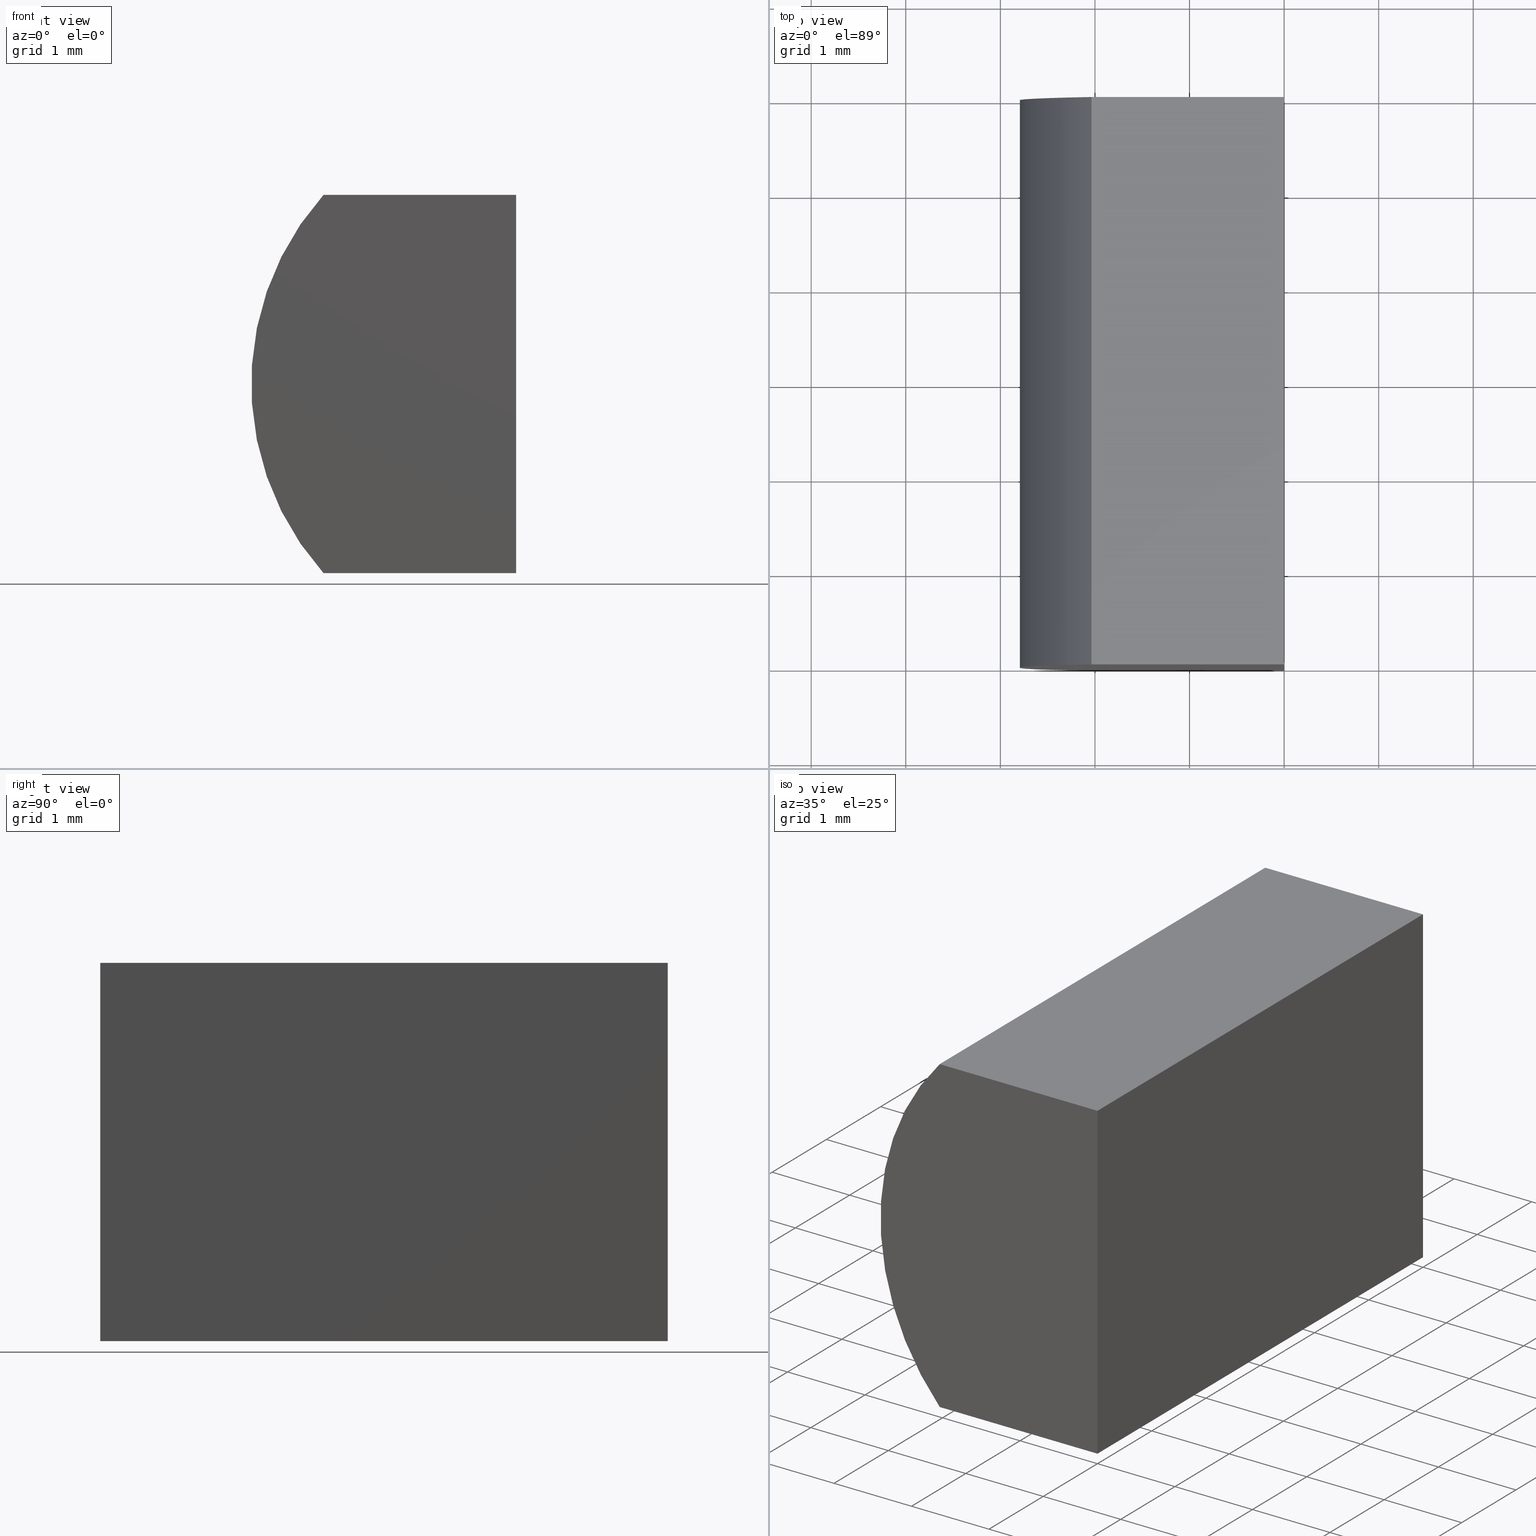
[diagram: canonical four-view strip — front | top / right | iso, engineering-drawing reading convention]
A machine part, canonical four-view strip (front | top / right | iso — engineering-drawing reading convention). The complete STEP part file that produces these views, byte-faithful:
ISO-10303-21;
HEADER;
FILE_DESCRIPTION (( 'STEP AP214' ),
    '1' );
FILE_NAME ('155002.STEP',
    '2019-06-14T05:14:45',
    ( 'user' ),
    ( '΢���й�' ),
    'SwSTEP 2.0',
    'SolidWorks 2016',
    '' );
FILE_SCHEMA (( 'AUTOMOTIVE_DESIGN' ));
ENDSEC;

DATA;
#1 = DIRECTION ( 'NONE',  ( -0.0000000000000000000, -1.000000000000000000, -0.0000000000000000000 ) ) ;
#2 = DIRECTION ( 'NONE',  ( 0.0000000000000000000, 1.000000000000000000, 0.0000000000000000000 ) ) ;
#3 = DIRECTION ( 'NONE',  ( 0.0000000000000000000, 1.000000000000000000, 0.0000000000000000000 ) ) ;
#4 = DIRECTION ( 'NONE',  ( -0.0000000000000000000, -0.0000000000000000000, -1.000000000000000000 ) ) ;
#5 = EDGE_CURVE ( 'NONE', #169, #12, #99, .T. ) ;
#6 = DIRECTION ( 'NONE',  ( 0.0000000000000000000, 0.0000000000000000000, -1.000000000000000000 ) ) ;
#7 = FILL_AREA_STYLE ('',( #93 ) ) ;
#8 = VECTOR ( 'NONE', #1, 1000.000000000000000 ) ;
#9 = CARTESIAN_POINT ( 'NONE',  ( 0.2000000000000005100, 6.000000000000000000, 2.000000000000000000 ) ) ;
#10 = DIRECTION ( 'NONE',  ( -0.0000000000000000000, -1.000000000000000000, -0.0000000000000000000 ) ) ;
#11 = CARTESIAN_POINT ( 'NONE',  ( 0.0000000000000000000, 0.0000000000000000000, 0.0000000000000000000 ) ) ;
#12 = VERTEX_POINT ( 'NONE', #79 ) ;
#13 = ADVANCED_FACE ( 'NONE', ( #80 ), #139, .F. ) ;
#14 = APPLICATION_PROTOCOL_DEFINITION ( 'draft international standard', 'automotive_design', 1998, #95 ) ;
#15 = CARTESIAN_POINT ( 'NONE',  ( -2.036067977499789600, 6.000000000000000000, 4.000000000000000000 ) ) ;
#16 = ORIENTED_EDGE ( 'NONE', *, *, #75, .F. ) ;
#17 =( GEOMETRIC_REPRESENTATION_CONTEXT ( 3 ) GLOBAL_UNCERTAINTY_ASSIGNED_CONTEXT ( ( #61 ) ) GLOBAL_UNIT_ASSIGNED_CONTEXT ( ( #90, #106, #118 ) ) REPRESENTATION_CONTEXT ( 'NONE', 'WORKASPACE' ) );
#18 = DIRECTION ( 'NONE',  ( 0.0000000000000000000, -0.0000000000000000000, 1.000000000000000000 ) ) ;
#19 = CARTESIAN_POINT ( 'NONE',  ( 0.0000000000000000000, 6.000000000000000000, 4.000000000000000000 ) ) ;
#20 = LINE ( 'NONE', #151, #8 ) ;
#21 = PRODUCT_RELATED_PRODUCT_CATEGORY ( 'part', '', ( #32 ) ) ;
#22 = LINE ( 'NONE', #202, #25 ) ;
#23 = UNCERTAINTY_MEASURE_WITH_UNIT (LENGTH_MEASURE( 1.000000000000000100E-005 ), #51, 'distance_accuracy_value', 'NONE');
#24 = VECTOR ( 'NONE', #4, 1000.000000000000000 ) ;
#25 = VECTOR ( 'NONE', #196, 1000.000000000000000 ) ;
#26 = AXIS2_PLACEMENT_3D ( 'NONE', #149, #2, #197 ) ;
#27 = EDGE_CURVE ( 'NONE', #133, #169, #115, .T. ) ;
#28 = DIRECTION ( 'NONE',  ( 1.000000000000000000, 0.0000000000000000000, 0.0000000000000000000 ) ) ;
#29 = ORIENTED_EDGE ( 'NONE', *, *, #157, .T. ) ;
#30 = EDGE_LOOP ( 'NONE', ( #114, #187, #16, #175 ) ) ;
#31 = ORIENTED_EDGE ( 'NONE', *, *, #27, .T. ) ;
#32 = PRODUCT ( '155002', '155002', '', ( #103 ) ) ;
#33 = DIRECTION ( 'NONE',  ( -1.000000000000000000, 0.0000000000000000000, 0.0000000000000000000 ) ) ;
#34 = VECTOR ( 'NONE', #81, 1000.000000000000000 ) ;
#35 = AXIS2_PLACEMENT_3D ( 'NONE', #172, #56, #62 ) ;
#36 = PLANE ( 'NONE',  #94 ) ;
#37 = PLANE ( 'NONE',  #35 ) ;
#38 = ORIENTED_EDGE ( 'NONE', *, *, #46, .T. ) ;
#39 = DIRECTION ( 'NONE',  ( -0.0000000000000000000, -0.0000000000000000000, -1.000000000000000000 ) ) ;
#40 = LINE ( 'NONE', #87, #63 ) ;
#41 = DIRECTION ( 'NONE',  ( 0.0000000000000000000, -0.0000000000000000000, 1.000000000000000000 ) ) ;
#42 = EDGE_CURVE ( 'NONE', #141, #73, #43, .T. ) ;
#43 = LINE ( 'NONE', #83, #34 ) ;
#44 = CYLINDRICAL_SURFACE ( 'NONE', #71, 3.000000000000000400 ) ;
#45 = ADVANCED_FACE ( 'NONE', ( #178 ), #44, .T. ) ;
#46 = EDGE_CURVE ( 'NONE', #169, #73, #20, .T. ) ;
#47 = APPLICATION_PROTOCOL_DEFINITION ( 'draft international standard', 'automotive_design', 1998, #185 ) ;
#48 = PRESENTATION_STYLE_ASSIGNMENT (( #123 ) ) ;
#49 = EDGE_LOOP ( 'NONE', ( #100, #183, #160, #121 ) ) ;
#50 = EDGE_CURVE ( 'NONE', #170, #122, #22, .T. ) ;
#51 =( LENGTH_UNIT ( ) NAMED_UNIT ( * ) SI_UNIT ( .MILLI., .METRE. ) );
#52 = LINE ( 'NONE', #15, #113 ) ;
#53 =( NAMED_UNIT ( * ) SI_UNIT ( $, .STERADIAN. ) SOLID_ANGLE_UNIT ( ) );
#54 = FACE_OUTER_BOUND ( 'NONE', #158, .T. ) ;
#55 =( NAMED_UNIT ( * ) PLANE_ANGLE_UNIT ( ) SI_UNIT ( $, .RADIAN. ) );
#56 = DIRECTION ( 'NONE',  ( 0.0000000000000000000, -0.0000000000000000000, 1.000000000000000000 ) ) ;
#57 = DIRECTION ( 'NONE',  ( 0.0000000000000000000, 0.0000000000000000000, 1.000000000000000000 ) ) ;
#58 = DIRECTION ( 'NONE',  ( 0.0000000000000000000, 1.000000000000000000, 0.0000000000000000000 ) ) ;
#59 = CARTESIAN_POINT ( 'NONE',  ( 0.2000000000000005100, 6.000000000000000000, 2.000000000000000000 ) ) ;
#60 =( GEOMETRIC_REPRESENTATION_CONTEXT ( 3 ) GLOBAL_UNCERTAINTY_ASSIGNED_CONTEXT ( ( #23 ) ) GLOBAL_UNIT_ASSIGNED_CONTEXT ( ( #51, #92, #161 ) ) REPRESENTATION_CONTEXT ( 'NONE', 'WORKASPACE' ) );
#61 = UNCERTAINTY_MEASURE_WITH_UNIT (LENGTH_MEASURE( 1.000000000000000100E-005 ), #90, 'distance_accuracy_value', 'NONE');
#62 = DIRECTION ( 'NONE',  ( 1.000000000000000000, 0.0000000000000000000, -0.0000000000000000000 ) ) ;
#63 = VECTOR ( 'NONE', #33, 1000.000000000000000 ) ;
#64 = MANIFOLD_SOLID_BREP ( '͹̨-����1', #85 ) ;
#65 = SURFACE_STYLE_FILL_AREA ( #7 ) ;
#66 = ORIENTED_EDGE ( 'NONE', *, *, #75, .T. ) ;
#67 = CARTESIAN_POINT ( 'NONE',  ( 0.0000000000000000000, 0.0000000000000000000, 0.0000000000000000000 ) ) ;
#68 = CARTESIAN_POINT ( 'NONE',  ( -2.036067977499789200, 6.000000000000000000, 0.0000000000000000000 ) ) ;
#69 = ORIENTED_EDGE ( 'NONE', *, *, #27, .F. ) ;
#70 = SURFACE_SIDE_STYLE ('',( #105 ) ) ;
#71 = AXIS2_PLACEMENT_3D ( 'NONE', #59, #204, #6 ) ;
#72 = ORIENTED_EDGE ( 'NONE', *, *, #5, .F. ) ;
#73 = VERTEX_POINT ( 'NONE', #198 ) ;
#74 = ORIENTED_EDGE ( 'NONE', *, *, #5, .T. ) ;
#75 = EDGE_CURVE ( 'NONE', #162, #133, #130, .T. ) ;
#76 = CARTESIAN_POINT ( 'NONE',  ( -2.036067977499789200, 6.000000000000000000, 0.0000000000000000000 ) ) ;
#77 = ORIENTED_EDGE ( 'NONE', *, *, #150, .T. ) ;
#78 = CARTESIAN_POINT ( 'NONE',  ( 0.0000000000000000000, 6.000000000000000000, 4.000000000000000000 ) ) ;
#79 = CARTESIAN_POINT ( 'NONE',  ( 0.0000000000000000000, 6.000000000000000000, 0.0000000000000000000 ) ) ;
#80 = FACE_OUTER_BOUND ( 'NONE', #131, .T. ) ;
#81 = DIRECTION ( 'NONE',  ( 1.000000000000000000, -0.0000000000000000000, -0.0000000000000000000 ) ) ;
#82 = PRODUCT_DEFINITION ( 'δ֪', '', #98, #136 ) ;
#83 = CARTESIAN_POINT ( 'NONE',  ( 0.0000000000000000000, 0.0000000000000000000, 4.000000000000000000 ) ) ;
#84 = EDGE_LOOP ( 'NONE', ( #154, #179, #69, #29 ) ) ;
#85 = CLOSED_SHELL ( 'NONE', ( #124, #45, #189, #13, #96, #145 ) ) ;
#86 = EDGE_CURVE ( 'NONE', #12, #170, #201, .T. ) ;
#87 = CARTESIAN_POINT ( 'NONE',  ( 0.0000000000000000000, 6.000000000000000000, 0.0000000000000000000 ) ) ;
#88 = CARTESIAN_POINT ( 'NONE',  ( -2.036067977499789600, 0.0000000000000000000, 4.000000000000000000 ) ) ;
#89 = CARTESIAN_POINT ( 'NONE',  ( 0.0000000000000000000, 6.000000000000000000, 0.0000000000000000000 ) ) ;
#90 =( LENGTH_UNIT ( ) NAMED_UNIT ( * ) SI_UNIT ( .MILLI., .METRE. ) );
#91 = PRESENTATION_STYLE_ASSIGNMENT (( #129 ) ) ;
#92 =( NAMED_UNIT ( * ) PLANE_ANGLE_UNIT ( ) SI_UNIT ( $, .RADIAN. ) );
#93 = FILL_AREA_STYLE_COLOUR ( '', #104 ) ;
#94 = AXIS2_PLACEMENT_3D ( 'NONE', #192, #142, #18 ) ;
#95 = APPLICATION_CONTEXT ( 'automotive_design' ) ;
#96 = ADVANCED_FACE ( 'NONE', ( #125 ), #137, .T. ) ;
#97 = UNCERTAINTY_MEASURE_WITH_UNIT (LENGTH_MEASURE( 1.000000000000000100E-005 ), #180, 'distance_accuracy_value', 'NONE');
#98 = PRODUCT_DEFINITION_FORMATION_WITH_SPECIFIED_SOURCE ( '�κ�', '', #32, .NOT_KNOWN. ) ;
#99 = LINE ( 'NONE', #155, #24 ) ;
#100 = ORIENTED_EDGE ( 'NONE', *, *, #50, .F. ) ;
#101 = AXIS2_PLACEMENT_3D ( 'NONE', #67, #110, #28 ) ;
#102 = DIRECTION ( 'NONE',  ( -1.000000000000000000, 0.0000000000000000000, -0.0000000000000000000 ) ) ;
#103 = PRODUCT_CONTEXT ( 'NONE', #185, 'mechanical' ) ;
#104 = COLOUR_RGB ( '',1.000000000000000000, 1.000000000000000000, 1.000000000000000000 ) ;
#105 = SURFACE_STYLE_FILL_AREA ( #176 ) ;
#106 =( NAMED_UNIT ( * ) PLANE_ANGLE_UNIT ( ) SI_UNIT ( $, .RADIAN. ) );
#107 = CARTESIAN_POINT ( 'NONE',  ( 0.0000000000000000000, 0.0000000000000000000, 0.0000000000000000000 ) ) ;
#108 = MECHANICAL_DESIGN_GEOMETRIC_PRESENTATION_REPRESENTATION (  '', ( #174 ), #165 ) ;
#109 = DIRECTION ( 'NONE',  ( -0.0000000000000000000, -1.000000000000000000, -0.0000000000000000000 ) ) ;
#110 = DIRECTION ( 'NONE',  ( 0.0000000000000000000, 0.0000000000000000000, 1.000000000000000000 ) ) ;
#111 = PRESENTATION_LAYER_ASSIGNMENT (  '', '', ( #174 ) ) ;
#112 = LINE ( 'NONE', #76, #138 ) ;
#113 = VECTOR ( 'NONE', #109, 1000.000000000000000 ) ;
#114 = ORIENTED_EDGE ( 'NONE', *, *, #190, .T. ) ;
#115 = LINE ( 'NONE', #19, #128 ) ;
#116 = CARTESIAN_POINT ( 'NONE',  ( -2.036067977499789200, 0.0000000000000000000, 0.0000000000000000000 ) ) ;
#117 = FACE_OUTER_BOUND ( 'NONE', #84, .T. ) ;
#118 =( NAMED_UNIT ( * ) SI_UNIT ( $, .STERADIAN. ) SOLID_ANGLE_UNIT ( ) );
#119 = FACE_OUTER_BOUND ( 'NONE', #49, .T. ) ;
#120 = DIRECTION ( 'NONE',  ( -0.0000000000000000000, -1.000000000000000000, -0.0000000000000000000 ) ) ;
#121 = ORIENTED_EDGE ( 'NONE', *, *, #190, .F. ) ;
#122 = VERTEX_POINT ( 'NONE', #116 ) ;
#123 = SURFACE_STYLE_USAGE ( .BOTH. , #199 ) ;
#124 = ADVANCED_FACE ( 'NONE', ( #54 ), #37, .F. ) ;
#125 = FACE_OUTER_BOUND ( 'NONE', #186, .T. ) ;
#126 = PRODUCT_DEFINITION_SHAPE ( 'NONE', 'NONE',  #82 ) ;
#127 = CARTESIAN_POINT ( 'NONE',  ( 0.0000000000000000000, 6.000000000000000000, 0.0000000000000000000 ) ) ;
#128 = VECTOR ( 'NONE', #171, 1000.000000000000000 ) ;
#129 = SURFACE_STYLE_USAGE ( .BOTH. , #70 ) ;
#130 = CIRCLE ( 'NONE', #195, 3.000000000000000900 ) ;
#131 = EDGE_LOOP ( 'NONE', ( #147, #159, #72, #38 ) ) ;
#132 = ORIENTED_EDGE ( 'NONE', *, *, #150, .F. ) ;
#133 = VERTEX_POINT ( 'NONE', #203 ) ;
#134 = DIRECTION ( 'NONE',  ( 0.0000000000000000000, 0.0000000000000000000, -1.000000000000000000 ) ) ;
#135 = DIRECTION ( 'NONE',  ( -1.000000000000000000, 0.0000000000000000000, 0.0000000000000000000 ) ) ;
#136 = PRODUCT_DEFINITION_CONTEXT ( 'detailed design', #95, 'design' ) ;
#137 = PLANE ( 'NONE',  #184 ) ;
#138 = VECTOR ( 'NONE', #10, 1000.000000000000000 ) ;
#139 = PLANE ( 'NONE',  #200 ) ;
#140 = COLOUR_RGB ( '',1.000000000000000000, 1.000000000000000000, 1.000000000000000000 ) ;
#141 = VERTEX_POINT ( 'NONE', #88 ) ;
#142 = DIRECTION ( 'NONE',  ( 0.0000000000000000000, 1.000000000000000000, 0.0000000000000000000 ) ) ;
#143 = CARTESIAN_POINT ( 'NONE',  ( 0.0000000000000000000, 6.000000000000000000, 4.000000000000000000 ) ) ;
#144 = ORIENTED_EDGE ( 'NONE', *, *, #86, .T. ) ;
#145 = ADVANCED_FACE ( 'NONE', ( #119 ), #36, .F. ) ;
#146 = VECTOR ( 'NONE', #39, 1000.000000000000000 ) ;
#147 = ORIENTED_EDGE ( 'NONE', *, *, #167, .T. ) ;
#148 = ORIENTED_EDGE ( 'NONE', *, *, #50, .T. ) ;
#149 = CARTESIAN_POINT ( 'NONE',  ( 0.2000000000000005100, 0.0000000000000000000, 2.000000000000000000 ) ) ;
#150 = EDGE_CURVE ( 'NONE', #12, #162, #40, .T. ) ;
#151 = CARTESIAN_POINT ( 'NONE',  ( 0.0000000000000000000, 6.000000000000000000, 4.000000000000000000 ) ) ;
#152 = CIRCLE ( 'NONE', #26, 3.000000000000000900 ) ;
#153 = AXIS2_PLACEMENT_3D ( 'NONE', #78, #134, #102 ) ;
#154 = ORIENTED_EDGE ( 'NONE', *, *, #42, .T. ) ;
#155 = CARTESIAN_POINT ( 'NONE',  ( 0.0000000000000000000, 6.000000000000000000, 0.0000000000000000000 ) ) ;
#156 = DIRECTION ( 'NONE',  ( 0.0000000000000000000, 0.0000000000000000000, 1.000000000000000000 ) ) ;
#157 = EDGE_CURVE ( 'NONE', #133, #141, #52, .T. ) ;
#158 = EDGE_LOOP ( 'NONE', ( #148, #193, #132, #144 ) ) ;
#159 = ORIENTED_EDGE ( 'NONE', *, *, #86, .F. ) ;
#160 = ORIENTED_EDGE ( 'NONE', *, *, #42, .F. ) ;
#161 =( NAMED_UNIT ( * ) SI_UNIT ( $, .STERADIAN. ) SOLID_ANGLE_UNIT ( ) );
#162 = VERTEX_POINT ( 'NONE', #68 ) ;
#163 = ADVANCED_BREP_SHAPE_REPRESENTATION ( '155002', ( #64, #101 ), #17 ) ;
#164 = LINE ( 'NONE', #107, #146 ) ;
#165 =( GEOMETRIC_REPRESENTATION_CONTEXT ( 3 ) GLOBAL_UNCERTAINTY_ASSIGNED_CONTEXT ( ( #97 ) ) GLOBAL_UNIT_ASSIGNED_CONTEXT ( ( #180, #55, #53 ) ) REPRESENTATION_CONTEXT ( 'NONE', 'WORKASPACE' ) );
#166 = CARTESIAN_POINT ( 'NONE',  ( 0.2000000000000005100, 6.000000000000000000, 2.000000000000000000 ) ) ;
#167 = EDGE_CURVE ( 'NONE', #73, #170, #164, .T. ) ;
#168 = EDGE_CURVE ( 'NONE', #162, #122, #112, .T. ) ;
#169 = VERTEX_POINT ( 'NONE', #143 ) ;
#170 = VERTEX_POINT ( 'NONE', #11 ) ;
#171 = DIRECTION ( 'NONE',  ( 1.000000000000000000, -0.0000000000000000000, -0.0000000000000000000 ) ) ;
#172 = CARTESIAN_POINT ( 'NONE',  ( 0.0000000000000000000, 6.000000000000000000, 0.0000000000000000000 ) ) ;
#173 = SHAPE_DEFINITION_REPRESENTATION ( #126, #163 ) ;
#174 = STYLED_ITEM ( 'NONE', ( #91 ), #163 ) ;
#175 = ORIENTED_EDGE ( 'NONE', *, *, #168, .T. ) ;
#176 = FILL_AREA_STYLE ('',( #188 ) ) ;
#177 = PLANE ( 'NONE',  #153 ) ;
#178 = FACE_OUTER_BOUND ( 'NONE', #30, .T. ) ;
#179 = ORIENTED_EDGE ( 'NONE', *, *, #46, .F. ) ;
#180 =( LENGTH_UNIT ( ) NAMED_UNIT ( * ) SI_UNIT ( .MILLI., .METRE. ) );
#181 = PRESENTATION_LAYER_ASSIGNMENT (  '', '', ( #194 ) ) ;
#182 = VECTOR ( 'NONE', #120, 1000.000000000000000 ) ;
#183 = ORIENTED_EDGE ( 'NONE', *, *, #167, .F. ) ;
#184 = AXIS2_PLACEMENT_3D ( 'NONE', #166, #3, #41 ) ;
#185 = APPLICATION_CONTEXT ( 'automotive_design' ) ;
#186 = EDGE_LOOP ( 'NONE', ( #77, #66, #31, #74 ) ) ;
#187 = ORIENTED_EDGE ( 'NONE', *, *, #157, .F. ) ;
#188 = FILL_AREA_STYLE_COLOUR ( '', #140 ) ;
#189 = ADVANCED_FACE ( 'NONE', ( #117 ), #177, .F. ) ;
#190 = EDGE_CURVE ( 'NONE', #122, #141, #152, .T. ) ;
#191 = MECHANICAL_DESIGN_GEOMETRIC_PRESENTATION_REPRESENTATION (  '', ( #194 ), #60 ) ;
#192 = CARTESIAN_POINT ( 'NONE',  ( 0.2000000000000005100, 0.0000000000000000000, 2.000000000000000000 ) ) ;
#193 = ORIENTED_EDGE ( 'NONE', *, *, #168, .F. ) ;
#194 = STYLED_ITEM ( 'NONE', ( #48 ), #64 ) ;
#195 = AXIS2_PLACEMENT_3D ( 'NONE', #9, #58, #57 ) ;
#196 = DIRECTION ( 'NONE',  ( -1.000000000000000000, 0.0000000000000000000, 0.0000000000000000000 ) ) ;
#197 = DIRECTION ( 'NONE',  ( 0.0000000000000000000, 0.0000000000000000000, 1.000000000000000000 ) ) ;
#198 = CARTESIAN_POINT ( 'NONE',  ( 0.0000000000000000000, 0.0000000000000000000, 4.000000000000000000 ) ) ;
#199 = SURFACE_SIDE_STYLE ('',( #65 ) ) ;
#200 = AXIS2_PLACEMENT_3D ( 'NONE', #89, #135, #156 ) ;
#201 = LINE ( 'NONE', #127, #182 ) ;
#202 = CARTESIAN_POINT ( 'NONE',  ( 0.0000000000000000000, 0.0000000000000000000, 0.0000000000000000000 ) ) ;
#203 = CARTESIAN_POINT ( 'NONE',  ( -2.036067977499789600, 6.000000000000000000, 4.000000000000000000 ) ) ;
#204 = DIRECTION ( 'NONE',  ( -0.0000000000000000000, -1.000000000000000000, -0.0000000000000000000 ) ) ;
ENDSEC;
END-ISO-10303-21;
